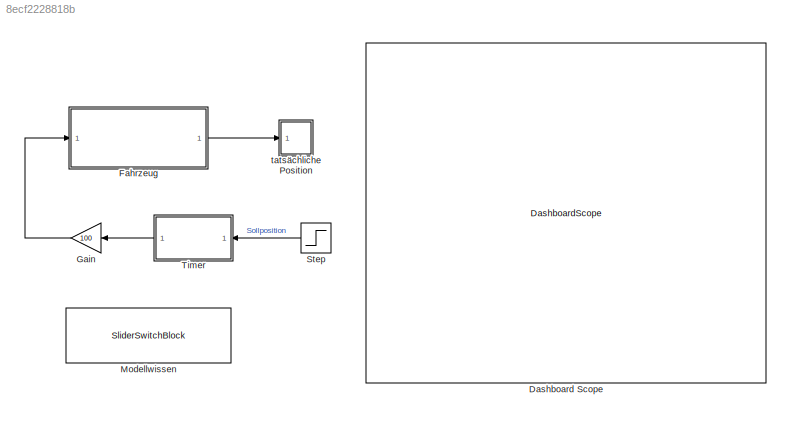
MODEL slx_8ecf2228818b
KIND model
CONFIG AbsTol = auto
CONFIG EnableMultiTasking = off
CONFIG FixedStep = auto
CONFIG MaxStep = auto
CONFIG MinStep = auto
CONFIG RelTol = 1e-3
CONFIG SampleTimeConstraint = Unconstrained
CONFIG SolverName = VariableStepAuto
CONFIG StartTime = 0.0
CONFIG StopTime = 10.0
BLOCK [DashboardScope] Dashboard Scope
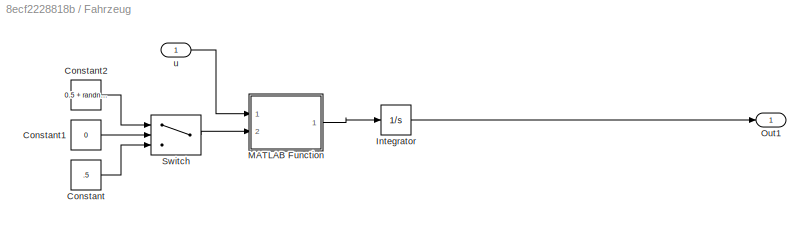
BLOCK [SubSystem] Fahrzeug
  Ports = [1, 1]
  RequestExecContextInheritance = off
BLOCK [Constant] Fahrzeug/Constant
  Value = .5
BLOCK [Constant] Fahrzeug/Constant1
  Value = 0
BLOCK [Constant] Fahrzeug/Constant2
  Value = 0.5 + randn/10
BLOCK [Integrator] Fahrzeug/Integrator
  Ports = [1, 1]
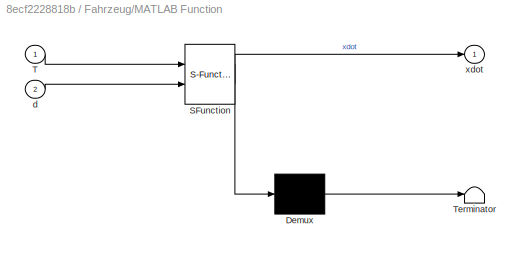
BLOCK [SubSystem] Fahrzeug/MATLAB Function
  ErrorFcn = Stateflow.Translate.translate
  PermitHierarchicalResolution = ExplicitOnly
  Ports = [2, 1]
  RequestExecContextInheritance = off
  SFBlockType = MATLAB Function
  TreatAsAtomicUnit = on
BLOCK [Demux] Fahrzeug/MATLAB Function/ Demux 
  Outputs = 1
  Ports = [1, 1]
BLOCK [S-Function] Fahrzeug/MATLAB Function/ SFunction 
  EnableBusSupport = on
  FunctionName = sf_sfun
  PortCounts = [2 2]
  Ports = [2, 2]
  SFcnIsStateOwnerBlock = off
  SFunctionDeploymentMode = off
  Tag = Stateflow S-Function 2
BLOCK [Terminator] Fahrzeug/MATLAB Function/ Terminator 
BLOCK [Inport] Fahrzeug/MATLAB Function/T
BLOCK [Inport] Fahrzeug/MATLAB Function/d
  Port = 2
BLOCK [Outport] Fahrzeug/MATLAB Function/xdot
BLOCK [Outport] Fahrzeug/Out1
BLOCK [Switch] Fahrzeug/Switch
  Criteria = u2 > Threshold
  InputSameDT = off
  SaturateOnIntegerOverflow = off
BLOCK [Inport] Fahrzeug/u
BLOCK [Gain] Gain
  Gain = 100
BLOCK [SliderSwitchBlock] Modellwissen
  LabelPosition = Hide
BLOCK [Step] Step
  SampleTime = 0
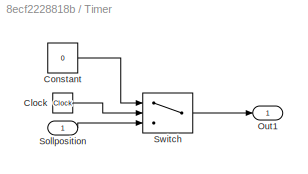
BLOCK [SubSystem] Timer
  Ports = [1, 1]
  RequestExecContextInheritance = off
BLOCK [Clock] Timer/Clock
BLOCK [Constant] Timer/Constant
  Value = 0
BLOCK [Outport] Timer/Out1
BLOCK [Inport] Timer/Sollposition
BLOCK [Switch] Timer/Switch
  Criteria = u2 > Threshold
  InputSameDT = off
  SaturateOnIntegerOverflow = off
  Threshold = 2
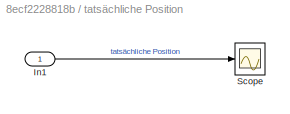
BLOCK [SubSystem] tatsächliche Position
  Ports = [1]
  RequestExecContextInheritance = off
BLOCK [Inport] tatsächliche Position/In1
BLOCK [Scope] tatsächliche Position/Scope
  Floating = off
  NumInputPorts = 1
  Ports = [1]
  ScopeSpecificationString = Simulink.scopes.TimeScopeBlockCfg('CurrentConfiguration', extmgr.ConfigurationSet(extmgr.Configuration('Core','General UI',true),extmgr.Configuration('Core','Source UI',true),extmgr.Configuration('Sources','WiredSimulink',true),extmgr.Configuration('Visuals','Time Domain',true),extmgr.Configuration('Tools','Plot Navigation',true),extmgr.Configuration('Tools','Measurements',true)),'Version','2022a'...<+1ch>
LINE Fahrzeug/Constant1:1 -> Fahrzeug/Switch:2
LINE Fahrzeug/Constant2:1 -> Fahrzeug/Switch:1
LINE Fahrzeug/Constant:1 -> Fahrzeug/Switch:3
LINE Fahrzeug/Integrator:1 -> Fahrzeug/Out1:1
LINE Fahrzeug/MATLAB Function:1 -> Fahrzeug/Integrator:1
LINE Fahrzeug/Switch:1 -> Fahrzeug/MATLAB Function:2
LINE Fahrzeug/u:1 -> Fahrzeug/MATLAB Function:1
LINE Fahrzeug:1 -> tatsächliche Position:1
LINE Gain:1 -> Fahrzeug:1
LINE Step:1 -> Timer:1
LINE Timer/Clock:1 -> Timer/Switch:2
LINE Timer/Constant:1 -> Timer/Switch:1
LINE Timer/Sollposition:1 -> Timer/Switch:3
LINE Timer/Switch:1 -> Timer/Out1:1
LINE Timer:1 -> Gain:1
LINE tatsächliche Position/In1:1 -> tatsächliche Position/Scope:1
CHART Fahrzeug/MATLAB Function states=1 transitions=1
  STATE_LABEL 'eML_blk_kernel()'
  STATE_LABEL 'SCRIPT:\nfunction xdot = fcn(T, d)\n\nxdot = sign(T)*(exp(abs(T)/100-d) - exp(-d))/(exp(d) - exp(-d));\n\nend'
CHART  states=0 transitions=0
